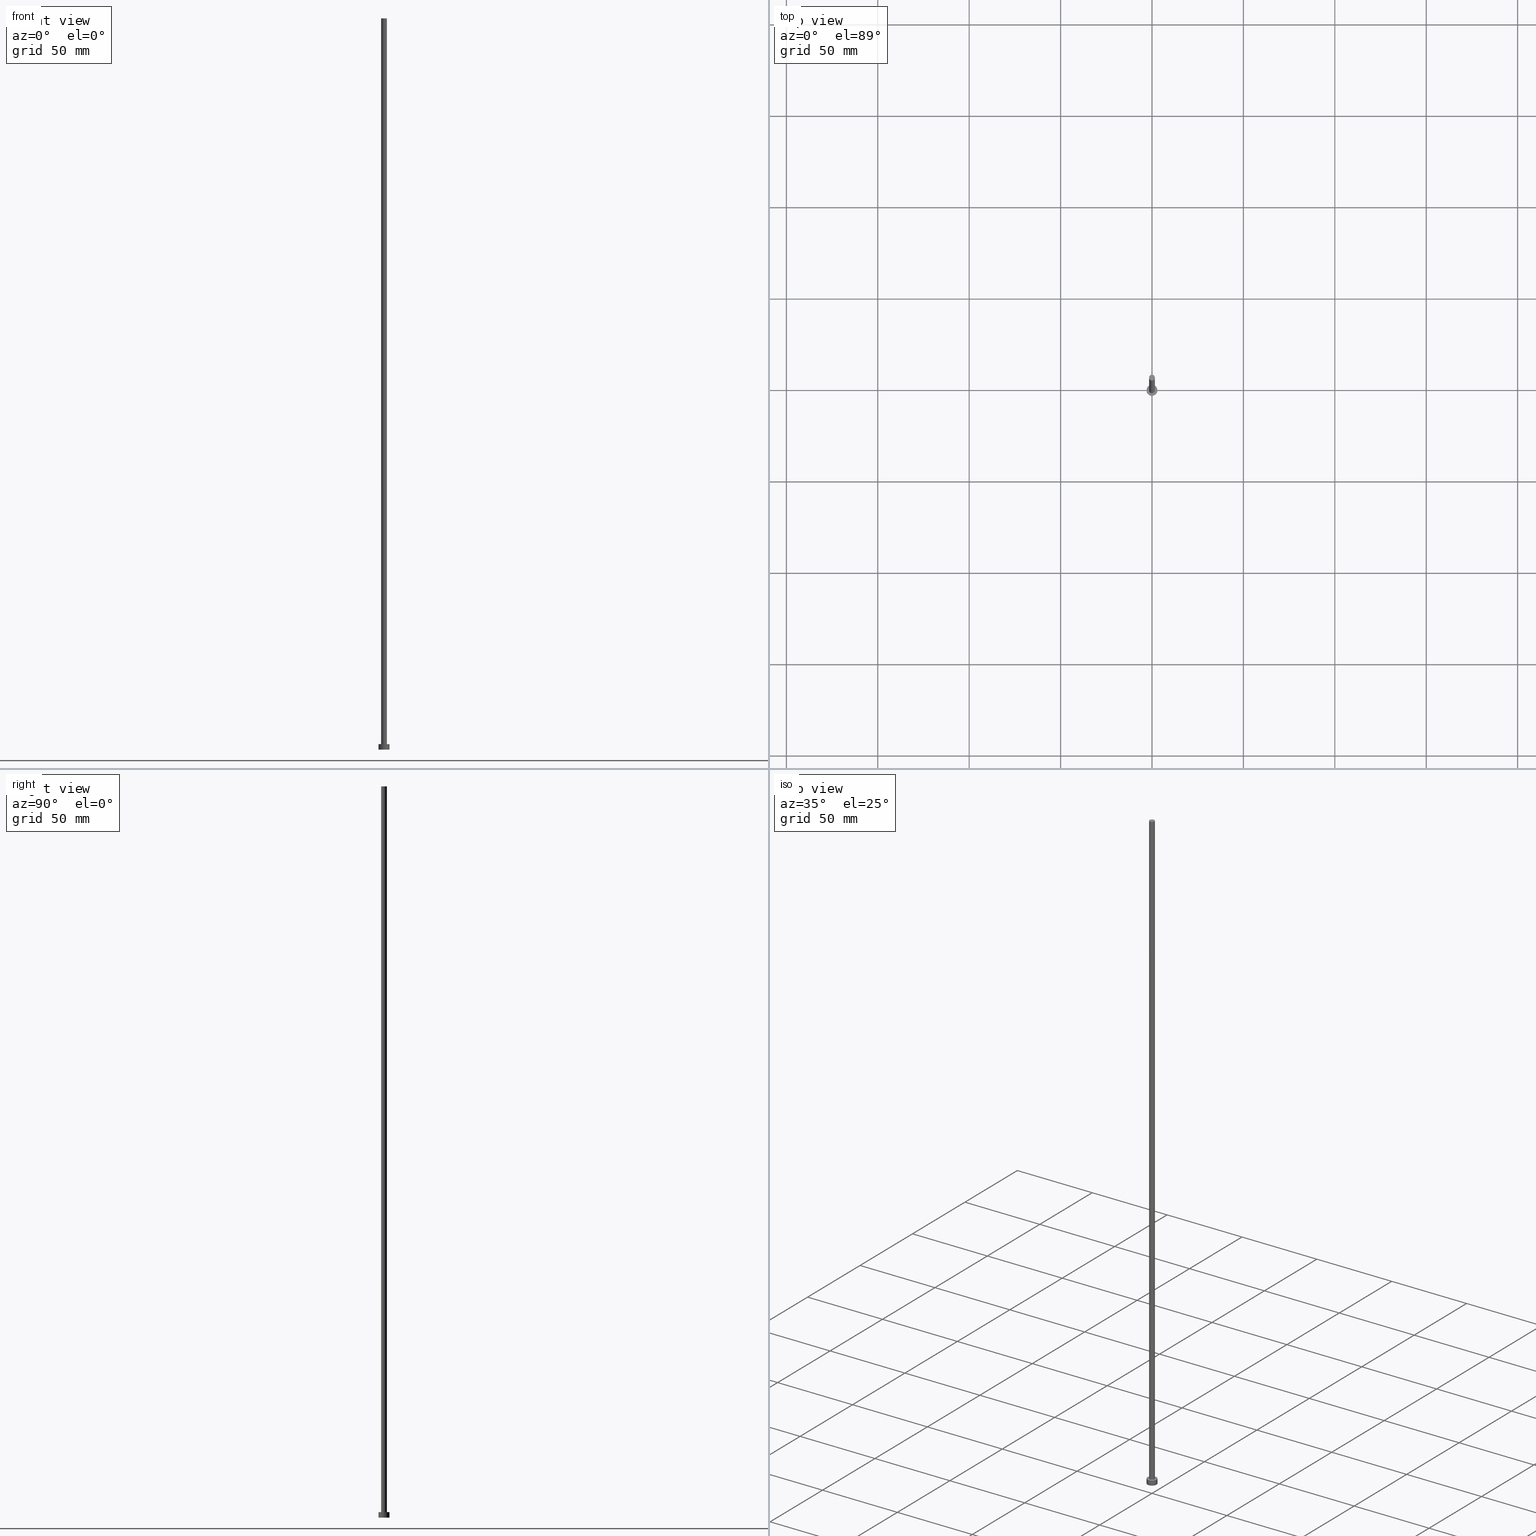
[diagram: canonical four-view strip — front | top / right | iso, engineering-drawing reading convention]
A machine part, canonical four-view strip (front | top / right | iso — engineering-drawing reading convention). The complete STEP part file that produces these views, byte-faithful:
ISO-10303-21;
HEADER;
FILE_DESCRIPTION (( 'STEP AP203' ),
    '1' );
FILE_NAME ('0ca0.STEP',
    '2023-02-13T16:52:17',
    ( '' ),
    ( '' ),
    'SwSTEP 2.0',
    'SolidWorks 2019',
    '' );
FILE_SCHEMA (( 'CONFIG_CONTROL_DESIGN' ));
ENDSEC;

DATA;
#1 = CIRCLE ( 'NONE', #196, 3.000000000000000444 ) ;
#2 = CC_DESIGN_PERSON_AND_ORGANIZATION_ASSIGNMENT ( #150, #173, ( #137 ) ) ;
#3 = SECURITY_CLASSIFICATION_LEVEL ( 'unclassified' ) ;
#4 = APPLICATION_PROTOCOL_DEFINITION ( 'international standard', 'config_control_design', 1994, #169 ) ;
#5 = PRODUCT_DEFINITION_SHAPE ( 'NONE', 'NONE',  #137 ) ;
#6 = DATE_AND_TIME ( #235, #129 ) ;
#7 = EDGE_LOOP ( 'NONE', ( #117, #180 ) ) ;
#8 = ADVANCED_FACE ( 'NONE', ( #200, #248 ), #159, .T. ) ;
#9 = ORIENTED_EDGE ( 'NONE', *, *, #243, .F. ) ;
#10 = EDGE_CURVE ( 'NONE', #119, #154, #201, .T. ) ;
#11 = EDGE_LOOP ( 'NONE', ( #132, #174, #151, #172 ) ) ;
#12 = LOCAL_TIME ( 17, 52, 17.00000000000000000, #251 ) ;
#13 = CARTESIAN_POINT ( 'NONE',  ( 0.000000000000000000, 0.000000000000000000, 3.000000000000000000 ) ) ;
#14 = CARTESIAN_POINT ( 'NONE',  ( 0.000000000000000000, 0.000000000000000000, 0.000000000000000000 ) ) ;
#15 = CC_DESIGN_PERSON_AND_ORGANIZATION_ASSIGNMENT ( #171, #128, ( #152 ) ) ;
#16 = UNCERTAINTY_MEASURE_WITH_UNIT (LENGTH_MEASURE( 1.000000000000000082E-05 ), #75, 'distance_accuracy_value', 'NONE');
#17 = DIRECTION ( 'NONE',  ( -0.000000000000000000, -0.000000000000000000, -1.000000000000000000 ) ) ;
#18 = CC_DESIGN_DATE_AND_TIME_ASSIGNMENT ( #6, #153, ( #137 ) ) ;
#19 = DIRECTION ( 'NONE',  ( 1.000000000000000000, 0.000000000000000000, 0.000000000000000000 ) ) ;
#20 = DIRECTION ( 'NONE',  ( 0.000000000000000000, 0.000000000000000000, 1.000000000000000000 ) ) ;
#21 = CARTESIAN_POINT ( 'NONE',  ( -1.600000000000000089, 0.000000000000000000, 400.0000000000000000 ) ) ;
#22 = DIRECTION ( 'NONE',  ( -0.000000000000000000, -0.000000000000000000, -1.000000000000000000 ) ) ;
#23 = APPROVAL_DATE_TIME ( #56, #204 ) ;
#24 = DIRECTION ( 'NONE',  ( 1.000000000000000000, 0.000000000000000000, 0.000000000000000000 ) ) ;
#25 = ADVANCED_FACE ( 'NONE', ( #98 ), #100, .T. ) ;
#26 = COORDINATED_UNIVERSAL_TIME_OFFSET ( 1, 0, .AHEAD. ) ;
#27 = ORIENTED_EDGE ( 'NONE', *, *, #106, .F. ) ;
#28 = EDGE_LOOP ( 'NONE', ( #222, #82 ) ) ;
#29 = CIRCLE ( 'NONE', #245, 1.600000000000000089 ) ;
#30 = CARTESIAN_POINT ( 'NONE',  ( 0.000000000000000000, 0.000000000000000000, 3.000000000000000000 ) ) ;
#31 = AXIS2_PLACEMENT_3D ( 'NONE', #116, #63, #24 ) ;
#32 = VECTOR ( 'NONE', #105, 1000.000000000000000 ) ;
#33 = CARTESIAN_POINT ( 'NONE',  ( -1.600000000000000089, 0.000000000000000000, 400.0000000000000000 ) ) ;
#34 = CIRCLE ( 'NONE', #241, 1.600000000000000089 ) ;
#35 = LOCAL_TIME ( 17, 52, 17.00000000000000000, #231 ) ;
#36 = CARTESIAN_POINT ( 'NONE',  ( -3.000000000000000444, 0.000000000000000000, 3.000000000000000000 ) ) ;
#37 = EDGE_CURVE ( 'NONE', #97, #133, #220, .T. ) ;
#38 = DIRECTION ( 'NONE',  ( 1.000000000000000000, 0.000000000000000000, 0.000000000000000000 ) ) ;
#39 = CALENDAR_DATE ( 2023, 13, 2 ) ;
#40 = CARTESIAN_POINT ( 'NONE',  ( 1.600000000000000089, 1.959434878635765230E-16, 400.0000000000000000 ) ) ;
#41 = SHAPE_DEFINITION_REPRESENTATION ( #5, #218 ) ;
#42 = DIRECTION ( 'NONE',  ( 0.000000000000000000, 0.000000000000000000, 1.000000000000000000 ) ) ;
#43 = COORDINATED_UNIVERSAL_TIME_OFFSET ( 1, 0, .AHEAD. ) ;
#44 = CARTESIAN_POINT ( 'NONE',  ( 0.000000000000000000, 0.000000000000000000, 3.000000000000000000 ) ) ;
#45 = DIRECTION ( 'NONE',  ( 1.000000000000000000, 0.000000000000000000, 0.000000000000000000 ) ) ;
#46 = PERSON_AND_ORGANIZATION ( #109, #54 ) ;
#47 = APPROVAL_STATUS ( 'not_yet_approved' ) ;
#48 = AXIS2_PLACEMENT_3D ( 'NONE', #52, #181, #247 ) ;
#49 = EDGE_LOOP ( 'NONE', ( #9, #217, #135, #197 ) ) ;
#50 = CARTESIAN_POINT ( 'NONE',  ( 3.000000000000000444, 3.673940397442060361E-16, 3.000000000000000000 ) ) ;
#51 = APPROVAL_PERSON_ORGANIZATION ( #189, #168, #207 ) ;
#52 = CARTESIAN_POINT ( 'NONE',  ( 0.000000000000000000, 0.000000000000000000, 3.000000000000000000 ) ) ;
#53 = AXIS2_PLACEMENT_3D ( 'NONE', #112, #164, #91 ) ;
#54 = ORGANIZATION ( 'NEUR�EN�', 'NEUR�EN�', '' ) ;
#55 = EDGE_CURVE ( 'NONE', #240, #154, #228, .T. ) ;
#56 = DATE_AND_TIME ( #93, #12 ) ;
#57 = CYLINDRICAL_SURFACE ( 'NONE', #83, 3.000000000000000444 ) ;
#58 = CIRCLE ( 'NONE', #123, 3.000000000000000444 ) ;
#59 = CARTESIAN_POINT ( 'NONE',  ( 3.000000000000000444, 3.673940397442060361E-16, 3.000000000000000000 ) ) ;
#60 = CALENDAR_DATE ( 2023, 13, 2 ) ;
#61 = PERSON_AND_ORGANIZATION_ROLE ( 'design_owner' ) ;
#62 = DATE_AND_TIME ( #39, #35 ) ;
#63 = DIRECTION ( 'NONE',  ( 0.000000000000000000, 0.000000000000000000, 1.000000000000000000 ) ) ;
#64 = ORIENTED_EDGE ( 'NONE', *, *, #101, .T. ) ;
#65 = APPROVAL_STATUS ( 'not_yet_approved' ) ;
#66 = EDGE_CURVE ( 'NONE', #193, #240, #224, .T. ) ;
#67 = EDGE_LOOP ( 'NONE', ( #79, #84, #219, #64 ) ) ;
#68 = AXIS2_PLACEMENT_3D ( 'NONE', #249, #186, #73 ) ;
#69 = VERTEX_POINT ( 'NONE', #36 ) ;
#70 = CARTESIAN_POINT ( 'NONE',  ( 0.000000000000000000, 0.000000000000000000, 0.000000000000000000 ) ) ;
#71 = DIRECTION ( 'NONE',  ( 1.000000000000000000, 0.000000000000000000, 0.000000000000000000 ) ) ;
#72 = DESIGN_CONTEXT ( 'detailed design', #169, 'design' ) ;
#73 = DIRECTION ( 'NONE',  ( -1.000000000000000000, 0.000000000000000000, 0.000000000000000000 ) ) ;
#74 = CARTESIAN_POINT ( 'NONE',  ( 0.000000000000000000, 0.000000000000000000, 400.0000000000000000 ) ) ;
#75 =( LENGTH_UNIT ( ) NAMED_UNIT ( * ) SI_UNIT ( .MILLI., .METRE. ) );
#76 = DIRECTION ( 'NONE',  ( 1.000000000000000000, 0.000000000000000000, 0.000000000000000000 ) ) ;
#77 = CARTESIAN_POINT ( 'NONE',  ( -3.000000000000000444, 0.000000000000000000, 3.000000000000000000 ) ) ;
#78 = PERSON_AND_ORGANIZATION_ROLE ( 'classification_officer' ) ;
#79 = ORIENTED_EDGE ( 'NONE', *, *, #66, .F. ) ;
#80 = ORIENTED_EDGE ( 'NONE', *, *, #125, .T. ) ;
#81 = ORIENTED_EDGE ( 'NONE', *, *, #101, .F. ) ;
#82 = ORIENTED_EDGE ( 'NONE', *, *, #243, .T. ) ;
#83 = AXIS2_PLACEMENT_3D ( 'NONE', #184, #148, #85 ) ;
#84 = ORIENTED_EDGE ( 'NONE', *, *, #223, .F. ) ;
#85 = DIRECTION ( 'NONE',  ( -1.000000000000000000, 0.000000000000000000, 0.000000000000000000 ) ) ;
#86 =( GEOMETRIC_REPRESENTATION_CONTEXT ( 3 ) GLOBAL_UNCERTAINTY_ASSIGNED_CONTEXT ( ( #16 ) ) GLOBAL_UNIT_ASSIGNED_CONTEXT ( ( #75, #209, #142 ) ) REPRESENTATION_CONTEXT ( 'NONE', 'WORKASPACE' ) );
#87 = AXIS2_PLACEMENT_3D ( 'NONE', #30, #226, #182 ) ;
#88 = CYLINDRICAL_SURFACE ( 'NONE', #68, 1.600000000000000089 ) ;
#89 = DIRECTION ( 'NONE',  ( 1.000000000000000000, 0.000000000000000000, 0.000000000000000000 ) ) ;
#90 = VECTOR ( 'NONE', #17, 1000.000000000000000 ) ;
#91 = DIRECTION ( 'NONE',  ( -1.000000000000000000, 0.000000000000000000, 0.000000000000000000 ) ) ;
#92 = LOCAL_TIME ( 17, 52, 17.00000000000000000, #43 ) ;
#93 = CALENDAR_DATE ( 2023, 13, 2 ) ;
#94 = APPLICATION_PROTOCOL_DEFINITION ( 'international standard', 'config_control_design', 1994, #104 ) ;
#95 = VERTEX_POINT ( 'NONE', #50 ) ;
#96 = MECHANICAL_CONTEXT ( 'NONE', #104, 'mechanical' ) ;
#97 = VERTEX_POINT ( 'NONE', #179 ) ;
#98 = FACE_OUTER_BOUND ( 'NONE', #49, .T. ) ;
#99 = ORIENTED_EDGE ( 'NONE', *, *, #37, .F. ) ;
#100 = CYLINDRICAL_SURFACE ( 'NONE', #48, 3.000000000000000444 ) ;
#101 = EDGE_CURVE ( 'NONE', #154, #240, #34, .T. ) ;
#102 = AXIS2_PLACEMENT_3D ( 'NONE', #14, #120, #71 ) ;
#103 = AXIS2_PLACEMENT_3D ( 'NONE', #183, #107, #45 ) ;
#104 = APPLICATION_CONTEXT ( 'configuration controlled 3d designs of mechanical parts and assemblies' ) ;
#105 = DIRECTION ( 'NONE',  ( -0.000000000000000000, -0.000000000000000000, -1.000000000000000000 ) ) ;
#106 = EDGE_CURVE ( 'NONE', #133, #97, #58, .T. ) ;
#107 = DIRECTION ( 'NONE',  ( 0.000000000000000000, 0.000000000000000000, 1.000000000000000000 ) ) ;
#108 = CARTESIAN_POINT ( 'NONE',  ( 0.000000000000000000, 0.000000000000000000, 3.000000000000000000 ) ) ;
#109 = PERSON ( 'NEUR�EN�', 'NEUR�EN�', 'NEUR�EN�', ('NEUR�EN�'), ('NEUR�EN�'), ('NEUR�EN�') ) ;
#110 = LINE ( 'NONE', #77, #32 ) ;
#111 = PERSON_AND_ORGANIZATION ( #109, #54 ) ;
#112 = CARTESIAN_POINT ( 'NONE',  ( 0.000000000000000000, 0.000000000000000000, 400.0000000000000000 ) ) ;
#113 = APPROVAL_DATE_TIME ( #210, #168 ) ;
#114 = AXIS2_PLACEMENT_3D ( 'NONE', #74, #230, #126 ) ;
#115 = VECTOR ( 'NONE', #22, 1000.000000000000000 ) ;
#116 = CARTESIAN_POINT ( 'NONE',  ( 0.000000000000000000, 0.000000000000000000, 0.000000000000000000 ) ) ;
#117 = ORIENTED_EDGE ( 'NONE', *, *, #223, .T. ) ;
#118 = EDGE_LOOP ( 'NONE', ( #81, #194 ) ) ;
#119 = VERTEX_POINT ( 'NONE', #21 ) ;
#120 = DIRECTION ( 'NONE',  ( 0.000000000000000000, 0.000000000000000000, 1.000000000000000000 ) ) ;
#121 = DIRECTION ( 'NONE',  ( 1.000000000000000000, 0.000000000000000000, 0.000000000000000000 ) ) ;
#122 = PRODUCT_RELATED_PRODUCT_CATEGORY ( 'detail', '', ( #198 ) ) ;
#123 = AXIS2_PLACEMENT_3D ( 'NONE', #70, #42, #38 ) ;
#124 = FACE_OUTER_BOUND ( 'NONE', #67, .T. ) ;
#125 = EDGE_CURVE ( 'NONE', #69, #97, #110, .T. ) ;
#126 = DIRECTION ( 'NONE',  ( 1.000000000000000000, 0.000000000000000000, -0.000000000000000000 ) ) ;
#127 = CARTESIAN_POINT ( 'NONE',  ( 0.000000000000000000, 0.000000000000000000, 400.0000000000000000 ) ) ;
#128 = PERSON_AND_ORGANIZATION_ROLE ( 'design_supplier' ) ;
#129 = LOCAL_TIME ( 17, 52, 17.00000000000000000, #26 ) ;
#130 = PERSON_AND_ORGANIZATION ( #109, #54 ) ;
#131 = CALENDAR_DATE ( 2023, 13, 2 ) ;
#132 = ORIENTED_EDGE ( 'NONE', *, *, #212, .F. ) ;
#133 = VERTEX_POINT ( 'NONE', #144 ) ;
#134 = LOCAL_TIME ( 17, 52, 17.00000000000000000, #213 ) ;
#135 = ORIENTED_EDGE ( 'NONE', *, *, #106, .T. ) ;
#136 = ORIENTED_EDGE ( 'NONE', *, *, #37, .T. ) ;
#137 = PRODUCT_DEFINITION ( 'NEZN�M�', '', #152, #72 ) ;
#138 = CARTESIAN_POINT ( 'NONE',  ( 0.000000000000000000, 0.000000000000000000, 3.000000000000000000 ) ) ;
#139 = EDGE_LOOP ( 'NONE', ( #177, #157, #80, #136 ) ) ;
#140 = ADVANCED_FACE ( 'NONE', ( #124 ), #187, .T. ) ;
#141 = CC_DESIGN_APPROVAL ( #168, ( #242 ) ) ;
#142 =( NAMED_UNIT ( * ) SI_UNIT ( $, .STERADIAN. ) SOLID_ANGLE_UNIT ( ) );
#143 = EDGE_CURVE ( 'NONE', #69, #95, #156, .T. ) ;
#144 = CARTESIAN_POINT ( 'NONE',  ( 3.000000000000000444, 3.673940397442060361E-16, 0.000000000000000000 ) ) ;
#145 = EDGE_CURVE ( 'NONE', #95, #133, #166, .T. ) ;
#146 = PERSON_AND_ORGANIZATION ( #109, #54 ) ;
#147 = PERSON_AND_ORGANIZATION_ROLE ( 'creator' ) ;
#148 = DIRECTION ( 'NONE',  ( -0.000000000000000000, -0.000000000000000000, -1.000000000000000000 ) ) ;
#149 = DATE_TIME_ROLE ( 'classification_date' ) ;
#150 = PERSON_AND_ORGANIZATION ( #109, #54 ) ;
#151 = ORIENTED_EDGE ( 'NONE', *, *, #55, .T. ) ;
#152 = PRODUCT_DEFINITION_FORMATION_WITH_SPECIFIED_SOURCE ( 'LIBOVOLN�', '', #198, .NOT_KNOWN. ) ;
#153 = DATE_TIME_ROLE ( 'creation_date' ) ;
#154 = VERTEX_POINT ( 'NONE', #170 ) ;
#155 = CC_DESIGN_PERSON_AND_ORGANIZATION_ASSIGNMENT ( #111, #147, ( #152 ) ) ;
#156 = CIRCLE ( 'NONE', #188, 3.000000000000000444 ) ;
#157 = ORIENTED_EDGE ( 'NONE', *, *, #143, .F. ) ;
#158 = DIRECTION ( 'NONE',  ( 0.000000000000000000, 0.000000000000000000, 1.000000000000000000 ) ) ;
#159 = PLANE ( 'NONE',  #87 ) ;
#160 = CC_DESIGN_PERSON_AND_ORGANIZATION_ASSIGNMENT ( #46, #61, ( #198 ) ) ;
#161 = ADVANCED_FACE ( 'NONE', ( #205 ), #185, .T. ) ;
#162 = DIRECTION ( 'NONE',  ( 0.000000000000000000, 0.000000000000000000, 1.000000000000000000 ) ) ;
#163 = CC_DESIGN_SECURITY_CLASSIFICATION ( #242, ( #152 ) ) ;
#164 = DIRECTION ( 'NONE',  ( -0.000000000000000000, -0.000000000000000000, -1.000000000000000000 ) ) ;
#165 = ADVANCED_FACE ( 'NONE', ( #167 ), #252, .F. ) ;
#166 = LINE ( 'NONE', #59, #115 ) ;
#167 = FACE_OUTER_BOUND ( 'NONE', #238, .T. ) ;
#168 = APPROVAL ( #234, 'NEUR�EN�' ) ;
#169 = APPLICATION_CONTEXT ( 'configuration controlled 3d designs of mechanical parts and assemblies' ) ;
#170 = CARTESIAN_POINT ( 'NONE',  ( -1.600000000000000089, 0.000000000000000000, 3.000000000000000000 ) ) ;
#171 = PERSON_AND_ORGANIZATION ( #109, #54 ) ;
#172 = ORIENTED_EDGE ( 'NONE', *, *, #10, .F. ) ;
#173 = PERSON_AND_ORGANIZATION_ROLE ( 'creator' ) ;
#174 = ORIENTED_EDGE ( 'NONE', *, *, #66, .T. ) ;
#175 = AXIS2_PLACEMENT_3D ( 'NONE', #254, #232, #208 ) ;
#176 = ADVANCED_FACE ( 'NONE', ( #206 ), #57, .T. ) ;
#177 = ORIENTED_EDGE ( 'NONE', *, *, #145, .F. ) ;
#178 = VECTOR ( 'NONE', #244, 1000.000000000000000 ) ;
#179 = CARTESIAN_POINT ( 'NONE',  ( -3.000000000000000444, 0.000000000000000000, 0.000000000000000000 ) ) ;
#180 = ORIENTED_EDGE ( 'NONE', *, *, #212, .T. ) ;
#181 = DIRECTION ( 'NONE',  ( -0.000000000000000000, -0.000000000000000000, -1.000000000000000000 ) ) ;
#182 = DIRECTION ( 'NONE',  ( 1.000000000000000000, 0.000000000000000000, -0.000000000000000000 ) ) ;
#183 = CARTESIAN_POINT ( 'NONE',  ( 0.000000000000000000, 0.000000000000000000, 400.0000000000000000 ) ) ;
#184 = CARTESIAN_POINT ( 'NONE',  ( 0.000000000000000000, 0.000000000000000000, 3.000000000000000000 ) ) ;
#185 = PLANE ( 'NONE',  #114 ) ;
#186 = DIRECTION ( 'NONE',  ( -0.000000000000000000, -0.000000000000000000, -1.000000000000000000 ) ) ;
#187 = CYLINDRICAL_SURFACE ( 'NONE', #53, 1.600000000000000089 ) ;
#188 = AXIS2_PLACEMENT_3D ( 'NONE', #108, #233, #76 ) ;
#189 = PERSON_AND_ORGANIZATION ( #109, #54 ) ;
#190 = APPROVAL_PERSON_ORGANIZATION ( #130, #246, #191 ) ;
#191 = APPROVAL_ROLE ( '' ) ;
#192 = DATE_AND_TIME ( #131, #134 ) ;
#193 = VERTEX_POINT ( 'NONE', #40 ) ;
#194 = ORIENTED_EDGE ( 'NONE', *, *, #55, .F. ) ;
#195 = CLOSED_SHELL ( 'NONE', ( #250, #25, #176, #8, #165, #140, #161 ) ) ;
#196 = AXIS2_PLACEMENT_3D ( 'NONE', #44, #20, #89 ) ;
#197 = ORIENTED_EDGE ( 'NONE', *, *, #125, .F. ) ;
#198 = PRODUCT ( '0ca0', '0ca0', '', ( #96 ) ) ;
#199 = DIRECTION ( 'NONE',  ( 1.000000000000000000, 0.000000000000000000, 0.000000000000000000 ) ) ;
#200 = FACE_BOUND ( 'NONE', #118, .T. ) ;
#201 = LINE ( 'NONE', #33, #178 ) ;
#202 = CARTESIAN_POINT ( 'NONE',  ( 1.600000000000000089, 1.959434878635765230E-16, 400.0000000000000000 ) ) ;
#203 = CIRCLE ( 'NONE', #103, 1.600000000000000089 ) ;
#204 = APPROVAL ( #65, 'NEUR�EN�' ) ;
#205 = FACE_OUTER_BOUND ( 'NONE', #7, .T. ) ;
#206 = FACE_OUTER_BOUND ( 'NONE', #139, .T. ) ;
#207 = APPROVAL_ROLE ( '' ) ;
#208 = DIRECTION ( 'NONE',  ( 1.000000000000000000, 0.000000000000000000, -0.000000000000000000 ) ) ;
#209 =( NAMED_UNIT ( * ) PLANE_ANGLE_UNIT ( ) SI_UNIT ( $, .RADIAN. ) );
#210 = DATE_AND_TIME ( #60, #92 ) ;
#211 = CARTESIAN_POINT ( 'NONE',  ( 1.600000000000000089, 1.959434878635765230E-16, 3.000000000000000000 ) ) ;
#212 = EDGE_CURVE ( 'NONE', #193, #119, #203, .T. ) ;
#213 = COORDINATED_UNIVERSAL_TIME_OFFSET ( 1, 0, .AHEAD. ) ;
#214 = APPROVAL_DATE_TIME ( #192, #246 ) ;
#215 = CC_DESIGN_DATE_AND_TIME_ASSIGNMENT ( #62, #149, ( #242 ) ) ;
#216 = APPROVAL_ROLE ( '' ) ;
#217 = ORIENTED_EDGE ( 'NONE', *, *, #145, .T. ) ;
#218 = ADVANCED_BREP_SHAPE_REPRESENTATION ( '0ca0', ( #239, #31 ), #86 ) ;
#219 = ORIENTED_EDGE ( 'NONE', *, *, #10, .T. ) ;
#220 = CIRCLE ( 'NONE', #102, 3.000000000000000444 ) ;
#221 = CC_DESIGN_PERSON_AND_ORGANIZATION_ASSIGNMENT ( #146, #78, ( #242 ) ) ;
#222 = ORIENTED_EDGE ( 'NONE', *, *, #143, .T. ) ;
#223 = EDGE_CURVE ( 'NONE', #119, #193, #29, .T. ) ;
#224 = LINE ( 'NONE', #202, #90 ) ;
#225 = CC_DESIGN_APPROVAL ( #246, ( #137 ) ) ;
#226 = DIRECTION ( 'NONE',  ( 0.000000000000000000, 0.000000000000000000, 1.000000000000000000 ) ) ;
#227 = DIRECTION ( 'NONE',  ( 0.000000000000000000, 0.000000000000000000, 1.000000000000000000 ) ) ;
#228 = CIRCLE ( 'NONE', #255, 1.600000000000000089 ) ;
#229 = CC_DESIGN_APPROVAL ( #204, ( #152 ) ) ;
#230 = DIRECTION ( 'NONE',  ( 0.000000000000000000, 0.000000000000000000, 1.000000000000000000 ) ) ;
#231 = COORDINATED_UNIVERSAL_TIME_OFFSET ( 1, 0, .AHEAD. ) ;
#232 = DIRECTION ( 'NONE',  ( 0.000000000000000000, 0.000000000000000000, 1.000000000000000000 ) ) ;
#233 = DIRECTION ( 'NONE',  ( 0.000000000000000000, 0.000000000000000000, 1.000000000000000000 ) ) ;
#234 = APPROVAL_STATUS ( 'not_yet_approved' ) ;
#235 = CALENDAR_DATE ( 2023, 13, 2 ) ;
#236 = APPROVAL_PERSON_ORGANIZATION ( #237, #204, #216 ) ;
#237 = PERSON_AND_ORGANIZATION ( #109, #54 ) ;
#238 = EDGE_LOOP ( 'NONE', ( #99, #27 ) ) ;
#239 = MANIFOLD_SOLID_BREP ( 'P�idat vysunut�m3', #195 ) ;
#240 = VERTEX_POINT ( 'NONE', #211 ) ;
#241 = AXIS2_PLACEMENT_3D ( 'NONE', #13, #158, #199 ) ;
#242 = SECURITY_CLASSIFICATION ( '', '', #3 ) ;
#243 = EDGE_CURVE ( 'NONE', #95, #69, #1, .T. ) ;
#244 = DIRECTION ( 'NONE',  ( -0.000000000000000000, -0.000000000000000000, -1.000000000000000000 ) ) ;
#245 = AXIS2_PLACEMENT_3D ( 'NONE', #127, #162, #19 ) ;
#246 = APPROVAL ( #47, 'NEUR�EN�' ) ;
#247 = DIRECTION ( 'NONE',  ( -1.000000000000000000, 0.000000000000000000, 0.000000000000000000 ) ) ;
#248 = FACE_OUTER_BOUND ( 'NONE', #28, .T. ) ;
#249 = CARTESIAN_POINT ( 'NONE',  ( 0.000000000000000000, 0.000000000000000000, 400.0000000000000000 ) ) ;
#250 = ADVANCED_FACE ( 'NONE', ( #253 ), #88, .T. ) ;
#251 = COORDINATED_UNIVERSAL_TIME_OFFSET ( 1, 0, .AHEAD. ) ;
#252 = PLANE ( 'NONE',  #175 ) ;
#253 = FACE_OUTER_BOUND ( 'NONE', #11, .T. ) ;
#254 = CARTESIAN_POINT ( 'NONE',  ( 0.000000000000000000, 0.000000000000000000, 0.000000000000000000 ) ) ;
#255 = AXIS2_PLACEMENT_3D ( 'NONE', #138, #227, #121 ) ;
ENDSEC;
END-ISO-10303-21;
